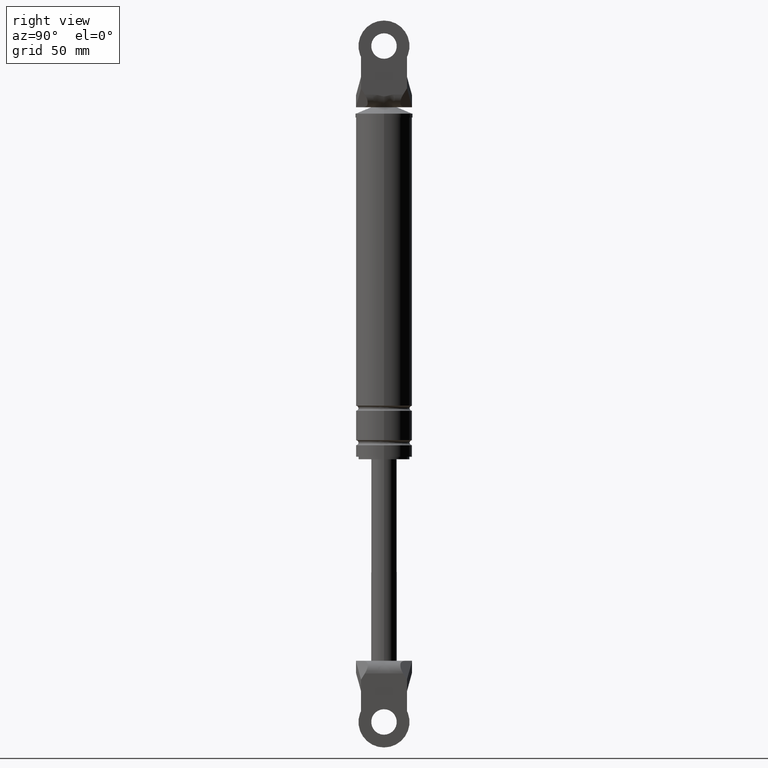
[diagram: clean part render]
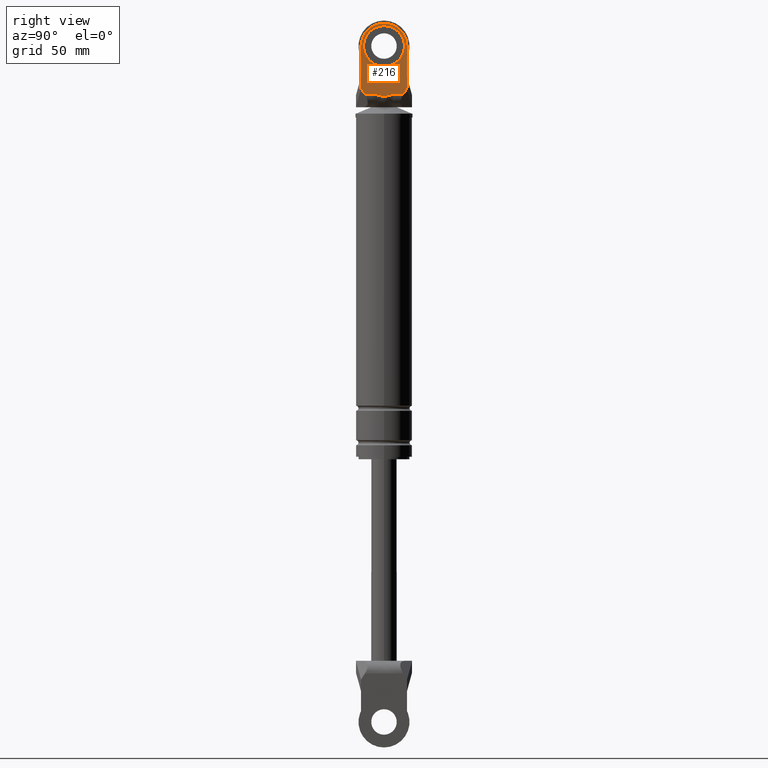
[diagram: same view with one face highlighted and labeled with its STEP entity id]
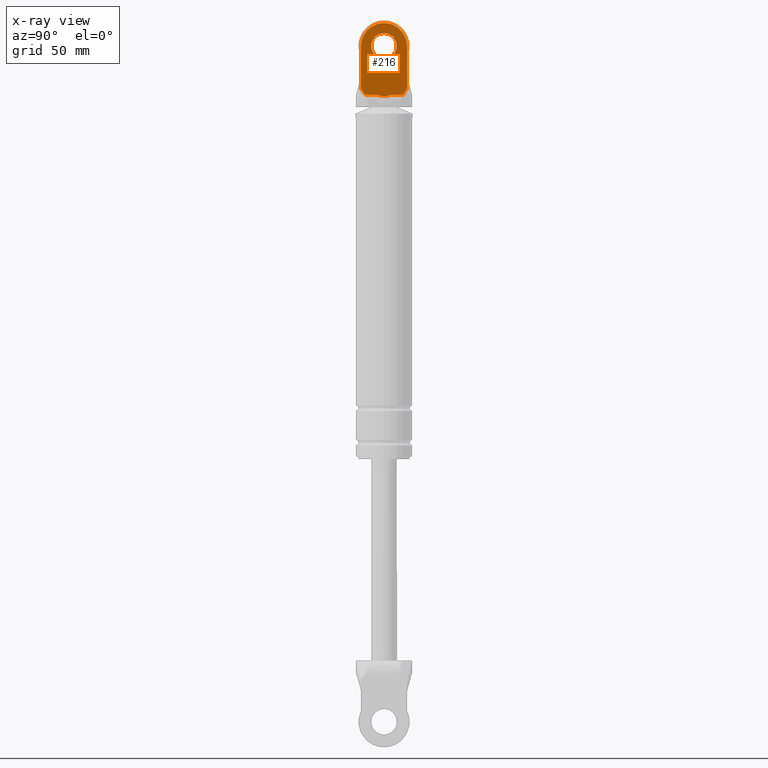
[diagram: x-ray of the same camera — body ghosted, the highlighted face saturated]
A machine part, right view. The second image highlights one B-rep face of the part: STEP entity #216.
The next image is the same camera in x-ray: the body ghosted, the highlighted face saturated — about 0% of this face is hidden behind the body in this view.
In plain terms, the highlighted planar face has unit normal (1, 0, 0).
Its self-contained STEP definition (entity closure, byte-faithful):
#216=ADVANCED_FACE('',(#412,#413),#411,.T.);
#411=PLANE('',#1195);
#412=FACE_OUTER_BOUND('',#1196,.T.);
#413=FACE_BOUND('',#1197,.T.);
#1192=CARTESIAN_POINT('',(7.00000000000E+000,1.08000000785E+001,9.03623767282E+001));
#1193=DIRECTION('',(1.00000000000E+000,0.00000000000E+000,-0.00000000000E+000));
#1194=DIRECTION('',(0.00000000000E+000,1.22460635382E-016,1.00000000000E+000));
#1195=AXIS2_PLACEMENT_3D('',#1192,#1193,#1194);
#1196=EDGE_LOOP('',(#1828,#1829,#1830,#1831,#1832,#1833,#1834,#1835,#1836,#1837));
#1197=EDGE_LOOP('',(#1838,#1839));
#1828=ORIENTED_EDGE('',*,*,#2204,.T.);
#1829=ORIENTED_EDGE('',*,*,#2205,.T.);
#1830=ORIENTED_EDGE('',*,*,#2206,.T.);
#1831=ORIENTED_EDGE('',*,*,#2207,.T.);
#1832=ORIENTED_EDGE('',*,*,#2208,.T.);
#1833=ORIENTED_EDGE('',*,*,#2209,.F.);
#1834=ORIENTED_EDGE('',*,*,#2210,.T.);
#1835=ORIENTED_EDGE('',*,*,#2211,.F.);
#1836=ORIENTED_EDGE('',*,*,#2212,.T.);
#1837=ORIENTED_EDGE('',*,*,#2213,.T.);
#1838=ORIENTED_EDGE('',*,*,#2214,.T.);
#1839=ORIENTED_EDGE('',*,*,#2215,.T.);
#2204=EDGE_CURVE('',#2540,#2541,#2542,.T.);
#2205=EDGE_CURVE('',#2541,#2548,#2549,.T.);
#2206=EDGE_CURVE('',#2548,#2555,#2556,.T.);
#2207=EDGE_CURVE('',#2555,#2562,#2563,.T.);
#2208=EDGE_CURVE('',#2562,#2569,#2570,.T.);
#2209=EDGE_CURVE('',#2576,#2569,#2577,.T.);
#2210=EDGE_CURVE('',#2576,#2583,#2584,.T.);
#2211=EDGE_CURVE('',#2590,#2583,#2591,.T.);
#2212=EDGE_CURVE('',#2590,#2597,#2598,.T.);
#2213=EDGE_CURVE('',#2597,#2540,#2604,.T.);
#2214=EDGE_CURVE('',#2610,#2611,#2612,.T.);
#2215=EDGE_CURVE('',#2611,#2610,#2618,.T.);
#2540=VERTEX_POINT('',#3804);
#2541=VERTEX_POINT('',#3805);
#2542=LINE('',#3806,#3807);
#2548=VERTEX_POINT('',#3809);
#2549=LINE('',#3810,#3811);
#2555=VERTEX_POINT('',#3813);
#2556=(BOUNDED_CURVE() B_SPLINE_CURVE(3,(#3814,#3815,#3816,#3817,#3818,#3819,#3820,#3821,#3822,#3823,#3824,#3825,#3826,#3827,#3828,#3829,#3830,#3831),.UNSPECIFIED.,.F.,.F.) B_SPLINE_CURVE_WITH_KNOTS((4,2,2,2,2,2,2,2,4),(0.00000000000E+000,1.06854947845E-003,2.13709895690E-003,3.20564843535E-003,4.27419791380E-003,5.34274739225E-003,6.41129687069E-003,7.47984634914E-003,8.54839582759E-003),.UNSPECIFIED.) CURVE() GEOMETRIC_REPRESENTATION_ITEM() RATIONAL_B_SPLINE_CURVE((1.00000000000E+000,1.00000000000E+000,1.00000000000E+000,1.00000000000E+000,1.00000000000E+000,1.00000000000E+000,1.00000000000E+000,1.00000000000E+000,1.00000000000E+000,1.00000000000E+000,1.00000000000E+000,1.00000000000E+000,1.00000000000E+000,1.00000000000E+000,1.00000000000E+000,1.00000000000E+000,1.00000000000E+000,1.00000000000E+000)) REPRESENTATION_ITEM('') );
#2562=VERTEX_POINT('',#3832);
#2563=LINE('',#3833,#3834);
#2569=VERTEX_POINT('',#3836);
#2570=LINE('',#3837,#3838);
#2576=VERTEX_POINT('',#3840);
#2577=LINE('',#3841,#3842);
#2583=VERTEX_POINT('',#3844);
#2584=LINE('',#3845,#3846);
#2590=VERTEX_POINT('',#3848);
#2591=CIRCLE('',#3852,9.00000000000E+000);
#2597=VERTEX_POINT('',#3853);
#2598=LINE('',#3854,#3855);
#2604=LINE('',#3857,#3858);
#2610=VERTEX_POINT('',#3860);
#2611=VERTEX_POINT('',#3861);
#2612=CIRCLE('',#3865,5.00000000000E+000);
#2618=CIRCLE('',#3869,5.00000000000E+000);
#3804=CARTESIAN_POINT('',(7.00000000000E+000,-9.00000000000E+000,9.63794956183E+001));
#3805=CARTESIAN_POINT('',(7.00000000000E+000,-7.51280740496E+000,9.39999850000E+001));
#3806=CARTESIAN_POINT('',(7.00000000000E+000,-9.00000000000E+000,9.63794956183E+001));
#3807=VECTOR('',#3808,2.80603146760E+000);
#3808=DIRECTION('',(0.00000000000E+000,5.29998544994E-001,-8.47998550886E-001));
#3809=CARTESIAN_POINT('',(7.00000000000E+000,-4.19794107278E+000,9.39999850000E+001));
#3810=CARTESIAN_POINT('',(7.00000000000E+000,-7.51280740496E+000,9.39999850000E+001));
#3811=VECTOR('',#3812,3.31486633219E+000);
#3812=DIRECTION('',(0.00000000000E+000,1.00000000000E+000,0.00000000000E+000));
#3813=CARTESIAN_POINT('',(7.00000000000E+000,4.19794107278E+000,9.39999850000E+001));
#3814=CARTESIAN_POINT('',(7.00000000000E+000,-4.19794107278E+000,9.39999850000E+001));
#3815=CARTESIAN_POINT('',(7.00000000000E+000,-3.83668867664E+000,9.39999850000E+001));
#3816=CARTESIAN_POINT('',(7.00000000000E+000,-3.48084742448E+000,9.39680255174E+001));
#3817=CARTESIAN_POINT('',(7.00000000000E+000,-2.77747191810E+000,9.38550434783E+001));
#3818=CARTESIAN_POINT('',(7.00000000000E+000,-2.43004895945E+000,9.37733635842E+001));
#3819=CARTESIAN_POINT('',(7.00000000000E+000,-1.73930455721E+000,9.35857792882E+001));
#3820=CARTESIAN_POINT('',(7.00000000000E+000,-1.39633116709E+000,9.34788034011E+001));
#3821=CARTESIAN_POINT('',(7.00000000000E+000,-7.02882341013E-001,9.33033126541E+001));
#3822=CARTESIAN_POINT('',(7.00000000000E+000,-3.50170672612E-001,9.32385229705E+001));
#3823=CARTESIAN_POINT('',(7.00000000000E+000,3.75945783394E-001,9.32414472218E+001));
#3824=CARTESIAN_POINT('',(7.00000000000E+000,7.25000323177E-001,9.33080943097E+001));
#3825=CARTESIAN_POINT('',(7.00000000000E+000,1.41392909206E+000,9.34841213850E+001));
#3826=CARTESIAN_POINT('',(7.00000000000E+000,1.75451243077E+000,9.35902005791E+001));
#3827=CARTESIAN_POINT('',(7.00000000000E+000,2.44131589628E+000,9.37761206067E+001));
#3828=CARTESIAN_POINT('',(7.00000000000E+000,2.78721992144E+000,9.38569752041E+001));
#3829=CARTESIAN_POINT('',(7.00000000000E+000,3.48676651954E+000,9.39686020866E+001));
#3830=CARTESIAN_POINT('',(7.00000000000E+000,3.84186402612E+000,9.39999850000E+001));
#3831=CARTESIAN_POINT('',(7.00000000000E+000,4.19794107278E+000,9.39999850000E+001));
#3832=CARTESIAN_POINT('',(7.00000000000E+000,7.51280740496E+000,9.39999850000E+001));
#3833=CARTESIAN_POINT('',(7.00000000000E+000,4.19794107278E+000,9.39999850000E+001));
#3834=VECTOR('',#3835,3.31486633219E+000);
#3835=DIRECTION('',(0.00000000000E+000,1.00000000000E+000,0.00000000000E+000));
#3836=CARTESIAN_POINT('',(7.00000000000E+000,9.00000000000E+000,9.63794956183E+001));
#3837=CARTESIAN_POINT('',(7.00000000000E+000,7.51280740496E+000,9.39999850000E+001));
#3838=VECTOR('',#3839,2.80603146760E+000);
#3839=DIRECTION('',(0.00000000000E+000,5.29998544994E-001,8.47998550886E-001));
#3840=CARTESIAN_POINT('',(7.00000000000E+000,9.00000000000E+000,1.00999985000E+002));
#3841=CARTESIAN_POINT('',(7.00000000000E+000,9.00000000000E+000,1.00999985000E+002));
#3842=VECTOR('',#3843,4.62048938173E+000);
#3843=DIRECTION('',(0.00000000000E+000,0.00000000000E+000,-1.00000000000E+000));
#3844=CARTESIAN_POINT('',(7.00000000000E+000,9.00000000000E+000,1.12999985000E+002));
#3845=CARTESIAN_POINT('',(7.00000000000E+000,9.00000000000E+000,1.00999985000E+002));
#3846=VECTOR('',#3847,1.20000000000E+001);
#3847=DIRECTION('',(0.00000000000E+000,1.48029736617E-016,1.00000000000E+000));
#3848=CARTESIAN_POINT('',(7.00000000000E+000,-9.00000000000E+000,1.12999984215E+002));
#3849=CARTESIAN_POINT('',(7.00000000000E+000,1.50626581520E-014,1.12999985000E+002));
#3850=DIRECTION('',(-1.00000000000E+000,0.00000000000E+000,0.00000000000E+000));
#3851=DIRECTION('',(-0.00000000000E+000,-1.22460635382E-016,-1.00000000000E+000));
#3852=AXIS2_PLACEMENT_3D('',#3849,#3850,#3851);
#3853=CARTESIAN_POINT('',(7.00000000000E+000,-9.00000000000E+000,1.00999985000E+002));
#3854=CARTESIAN_POINT('',(7.00000000000E+000,-9.00000000000E+000,1.12999984215E+002));
#3855=VECTOR('',#3856,1.19999992146E+001);
#3856=DIRECTION('',(0.00000000000E+000,-1.48029746305E-016,-1.00000000000E+000));
#3857=CARTESIAN_POINT('',(7.00000000000E+000,-9.00000000000E+000,1.00999985000E+002));
#3858=VECTOR('',#3859,4.62048938173E+000);
#3859=DIRECTION('',(0.00000000000E+000,0.00000000000E+000,-1.00000000000E+000));
#3860=CARTESIAN_POINT('',(7.00000000000E+000,1.56749613289E-014,1.17999985000E+002));
#3861=CARTESIAN_POINT('',(7.00000000000E+000,1.48029736617E-014,1.07999985000E+002));
#3862=CARTESIAN_POINT('',(7.00000000000E+000,1.50626581520E-014,1.12999985000E+002));
#3863=DIRECTION('',(-1.00000000000E+000,0.00000000000E+000,0.00000000000E+000));
#3864=DIRECTION('',(0.00000000000E+000,-1.47911419729E-031,1.00000000000E+000));
#3865=AXIS2_PLACEMENT_3D('',#3862,#3863,#3864);
#3866=CARTESIAN_POINT('',(7.00000000000E+000,1.50626581520E-014,1.12999985000E+002));
#3867=DIRECTION('',(-1.00000000000E+000,0.00000000000E+000,0.00000000000E+000));
#3868=DIRECTION('',(0.00000000000E+000,-1.47911419729E-031,1.00000000000E+000));
#3869=AXIS2_PLACEMENT_3D('',#3866,#3867,#3868);